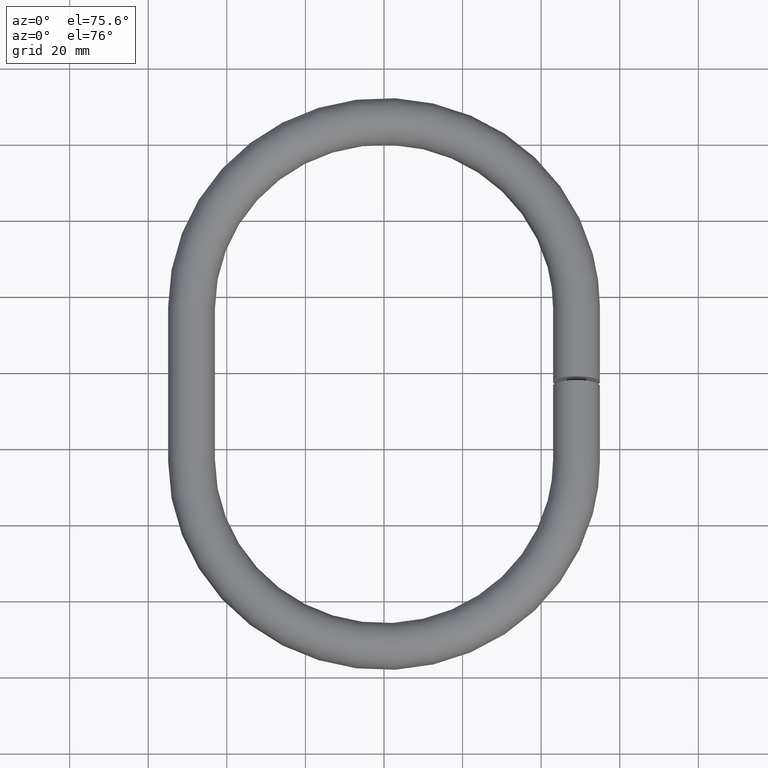
[diagram: clean part render]
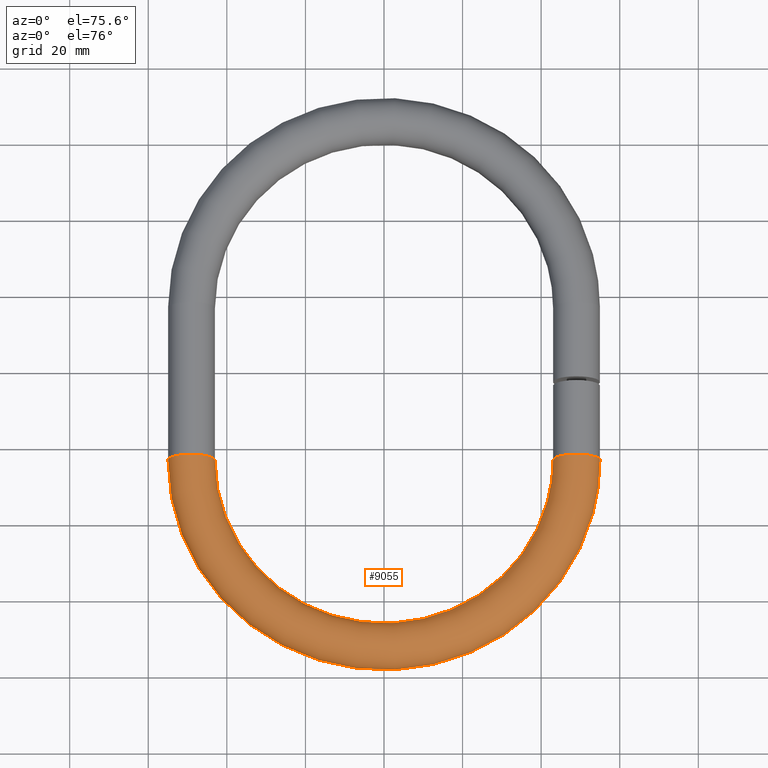
[diagram: same view with one face highlighted and labeled with its STEP entity id]
A machine part, auxiliary view. The second image highlights one B-rep face of the part: STEP entity #9055.
In plain terms, the highlighted toroidal blend (fillet) surface has major radius 49 mm and minor (blend) radius 6 mm.
Its self-contained STEP definition (entity closure, byte-faithful):
#91 = DIRECTION ( 'NONE',  ( 6.123233995736766000E-017, -1.000000000000000000, 0.0000000000000000000 ) ) ;
#813 = EDGE_LOOP ( 'NONE', ( #6755 ) ) ;
#937 = ORIENTED_EDGE ( 'NONE', *, *, #4680, .F. ) ;
#1277 = CARTESIAN_POINT ( 'NONE',  ( 49.00000000000000000, 55.00000000000001400, 0.0000000000000000000 ) ) ;
#1380 = AXIS2_PLACEMENT_3D ( 'NONE', #4054, #7683, #2683 ) ;
#1453 = CIRCLE ( 'NONE', #4098, 6.000000000000000900 ) ;
#1902 = DIRECTION ( 'NONE',  ( -1.836970198721029700E-016, 1.000000000000000000, 0.0000000000000000000 ) ) ;
#2123 = CARTESIAN_POINT ( 'NONE',  ( -49.00000000000000000, 54.99999999999999300, -6.000000000000000900 ) ) ;
#2170 = EDGE_CURVE ( 'NONE', #4276, #4276, #1453, .T. ) ;
#2683 = DIRECTION ( 'NONE',  ( 1.000000000000000000, 0.0000000000000000000, 0.0000000000000000000 ) ) ;
#3200 = CIRCLE ( 'NONE', #5848, 6.000000000000000900 ) ;
#3646 = CARTESIAN_POINT ( 'NONE',  ( -49.00000000000000000, 54.99999999999999300, 0.0000000000000000000 ) ) ;
#3704 = CARTESIAN_POINT ( 'NONE',  ( 49.00000000000000000, 55.00000000000001400, -6.000000000000000900 ) ) ;
#4054 = CARTESIAN_POINT ( 'NONE',  ( 0.0000000000000000000, 55.00000000000000000, 0.0000000000000000000 ) ) ;
#4098 = AXIS2_PLACEMENT_3D ( 'NONE', #3646, #91, #5817 ) ;
#4138 = DIRECTION ( 'NONE',  ( 0.0000000000000000000, 0.0000000000000000000, -1.000000000000000000 ) ) ;
#4265 = VERTEX_POINT ( 'NONE', #3704 ) ;
#4276 = VERTEX_POINT ( 'NONE', #2123 ) ;
#4680 = EDGE_CURVE ( 'NONE', #4265, #4265, #3200, .T. ) ;
#5513 = TOROIDAL_SURFACE ( 'NONE', #1380, 49.00000000000000000, 6.000000000000000900 ) ;
#5817 = DIRECTION ( 'NONE',  ( 0.0000000000000000000, 0.0000000000000000000, -1.000000000000000000 ) ) ;
#5848 = AXIS2_PLACEMENT_3D ( 'NONE', #1277, #1902, #4138 ) ;
#6755 = ORIENTED_EDGE ( 'NONE', *, *, #2170, .T. ) ;
#7683 = DIRECTION ( 'NONE',  ( 0.0000000000000000000, 0.0000000000000000000, 1.000000000000000000 ) ) ;
#8423 = EDGE_LOOP ( 'NONE', ( #937 ) ) ;
#8673 = FACE_OUTER_BOUND ( 'NONE', #8423, .T. ) ;
#8893 = FACE_OUTER_BOUND ( 'NONE', #813, .T. ) ;
#9055 = ADVANCED_FACE ( 'NONE', ( #8893, #8673 ), #5513, .T. ) ;